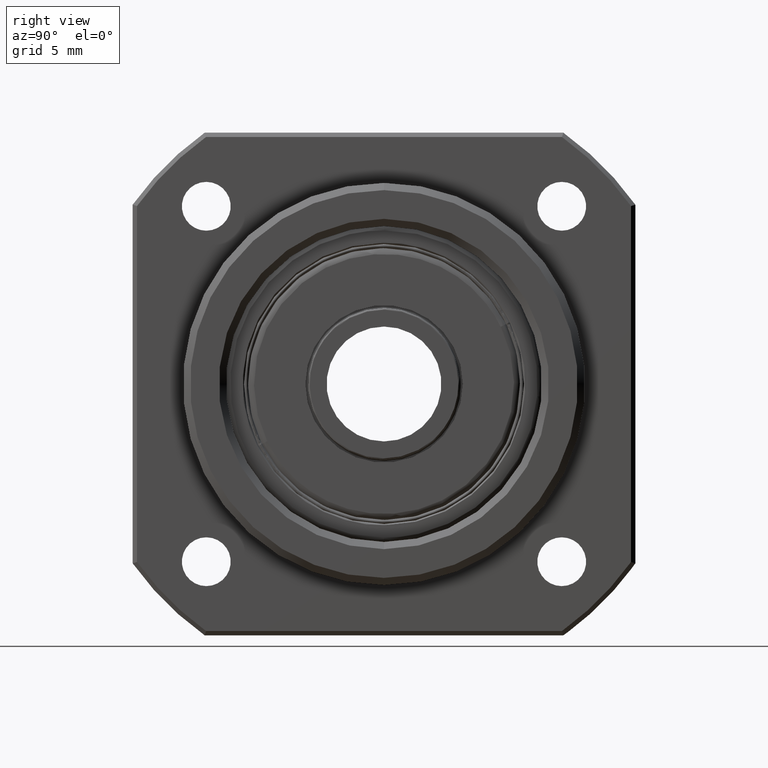
[diagram: clean part render]
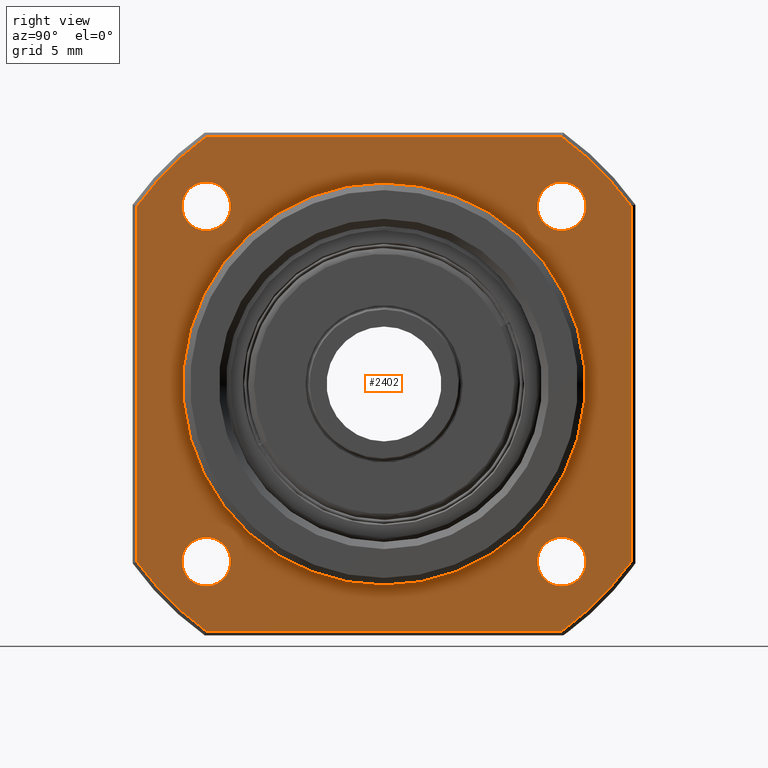
[diagram: same view with one face highlighted and labeled with its STEP entity id]
A machine part, right view. The second image highlights one B-rep face of the part: STEP entity #2402.
In plain terms, the highlighted planar face has unit normal (-1, 0, 0).
Its self-contained STEP definition (entity closure, byte-faithful):
#59 = CARTESIAN_POINT ( 'NONE',  ( 7.000000000000002700, -17.20000000000000600, 12.39354670786372700 ) ) ;
#86 = EDGE_CURVE ( 'NONE', #4583, #1376, #1943, .T. ) ;
#116 = AXIS2_PLACEMENT_3D ( 'NONE', #4829, #4819, #4806 ) ;
#152 = VERTEX_POINT ( 'NONE', #3641 ) ;
#268 = AXIS2_PLACEMENT_3D ( 'NONE', #5181, #5168, #5147 ) ;
#270 = EDGE_CURVE ( 'NONE', #1770, #4583, #6455, .T. ) ;
#321 = CARTESIAN_POINT ( 'NONE',  ( 7.000000000000000900, 12.37436867076460700, 14.07436867076455800 ) ) ;
#362 = AXIS2_PLACEMENT_3D ( 'NONE', #5517, #5510, #5498 ) ;
#476 = EDGE_CURVE ( 'NONE', #3995, #1770, #6333, .T. ) ;
#571 = EDGE_CURVE ( 'NONE', #4363, #3995, #6270, .T. ) ;
#660 = DIRECTION ( 'NONE',  ( 0.0000000000000000000, 0.0000000000000000000, 1.000000000000000000 ) ) ;
#677 = EDGE_CURVE ( 'NONE', #1403, #4363, #6229, .T. ) ;
#708 = EDGE_CURVE ( 'NONE', #3560, #4111, #6201, .T. ) ;
#716 = DIRECTION ( 'NONE',  ( 1.000000000000000000, 0.0000000000000000000, 0.0000000000000000000 ) ) ;
#721 = CARTESIAN_POINT ( 'NONE',  ( 7.000000000000000900, 12.37436867076460700, -12.37436867076455500 ) ) ;
#782 = AXIS2_PLACEMENT_3D ( 'NONE', #917, #846, #791 ) ;
#791 = DIRECTION ( 'NONE',  ( 0.0000000000000000000, 0.0000000000000000000, 1.000000000000000000 ) ) ;
#846 = DIRECTION ( 'NONE',  ( 1.000000000000000000, 0.0000000000000000000, 0.0000000000000000000 ) ) ;
#849 = DIRECTION ( 'NONE',  ( -0.0000000000000000000, -0.0000000000000000000, -1.000000000000000000 ) ) ;
#850 = CARTESIAN_POINT ( 'NONE',  ( 7.000000000000004400, -12.39354670786383900, 17.19999999999992500 ) ) ;
#866 = EDGE_CURVE ( 'NONE', #4111, #1403, #6181, .T. ) ;
#917 = CARTESIAN_POINT ( 'NONE',  ( 7.000000000000006200, 0.0000000000000000000, 0.0000000000000000000 ) ) ;
#931 = VERTEX_POINT ( 'NONE', #321 ) ;
#1185 = CARTESIAN_POINT ( 'NONE',  ( 7.000000000000006200, 0.0000000000000000000, 14.00000000000000200 ) ) ;
#1204 = CIRCLE ( 'NONE', #5237, 21.20000000000000300 ) ;
#1376 = VERTEX_POINT ( 'NONE', #1915 ) ;
#1385 = CIRCLE ( 'NONE', #6136, 1.700000000000000200 ) ;
#1387 = CARTESIAN_POINT ( 'NONE',  ( 7.000000000000000900, 12.39354670786381800, -17.19999999999994600 ) ) ;
#1403 = VERTEX_POINT ( 'NONE', #1387 ) ;
#1431 = AXIS2_PLACEMENT_3D ( 'NONE', #721, #716, #660 ) ;
#1460 = CIRCLE ( 'NONE', #6480, 1.700000000000000200 ) ;
#1547 = CIRCLE ( 'NONE', #116, 1.700000000000000200 ) ;
#1636 = CIRCLE ( 'NONE', #268, 1.700000000000000200 ) ;
#1676 = CIRCLE ( 'NONE', #362, 14.00000000000000200 ) ;
#1745 = AXIS2_PLACEMENT_3D ( 'NONE', #2083, #2063, #1985 ) ;
#1770 = VERTEX_POINT ( 'NONE', #59 ) ;
#1891 = VECTOR ( 'NONE', #3955, 1000.000000000000000 ) ;
#1902 = CIRCLE ( 'NONE', #782, 14.00000000000000200 ) ;
#1915 = CARTESIAN_POINT ( 'NONE',  ( 7.000000000000000900, 12.39354670786384300, 17.19999999999993200 ) ) ;
#1916 = VERTEX_POINT ( 'NONE', #6397 ) ;
#1928 = AXIS2_PLACEMENT_3D ( 'NONE', #3093, #3079, #2957 ) ;
#1943 = LINE ( 'NONE', #4026, #1891 ) ;
#1985 = DIRECTION ( 'NONE',  ( 0.0000000000000000000, 0.0000000000000000000, 1.000000000000000000 ) ) ;
#2063 = DIRECTION ( 'NONE',  ( 1.000000000000000000, 0.0000000000000000000, 0.0000000000000000000 ) ) ;
#2083 = CARTESIAN_POINT ( 'NONE',  ( 7.000000000000000900, 12.37436867076460700, 12.37436867076455900 ) ) ;
#2150 = EDGE_LOOP ( 'NONE', ( #4803, #4811, #4830, #4854, #4859, #4864, #4958, #4978 ) ) ;
#2204 = CARTESIAN_POINT ( 'NONE',  ( 7.000000000000002700, -12.39354670786381800, -17.19999999999994600 ) ) ;
#2247 = CIRCLE ( 'NONE', #1431, 1.700000000000000200 ) ;
#2319 = CIRCLE ( 'NONE', #1745, 1.700000000000000200 ) ;
#2348 = DIRECTION ( 'NONE',  ( 0.0000000000000000000, 0.0000000000000000000, 1.000000000000000000 ) ) ;
#2364 = DIRECTION ( 'NONE',  ( -1.000000000000000000, 0.0000000000000000000, 0.0000000000000000000 ) ) ;
#2374 = CARTESIAN_POINT ( 'NONE',  ( 7.000000000000002700, 0.0000000000000000000, 0.0000000000000000000 ) ) ;
#2402 = ADVANCED_FACE ( 'NONE', ( #4879, #4885, #4862, #4866, #4860, #4852 ), #4831, .F. ) ;
#2411 = CARTESIAN_POINT ( 'NONE',  ( 7.000000000000006200, 1.714505518806294800E-015, -14.00000000000000200 ) ) ;
#2510 = CIRCLE ( 'NONE', #1928, 1.700000000000000200 ) ;
#2619 = CIRCLE ( 'NONE', #2691, 1.700000000000000200 ) ;
#2691 = AXIS2_PLACEMENT_3D ( 'NONE', #5494, #5481, #5473 ) ;
#2779 = VERTEX_POINT ( 'NONE', #1185 ) ;
#2913 = CARTESIAN_POINT ( 'NONE',  ( 7.000000000000000900, -17.20000000000001000, 0.0000000000000000000 ) ) ;
#2957 = DIRECTION ( 'NONE',  ( 0.0000000000000000000, 0.0000000000000000000, 1.000000000000000000 ) ) ;
#2976 = AXIS2_PLACEMENT_3D ( 'NONE', #4103, #4136, #4354 ) ;
#3060 = VERTEX_POINT ( 'NONE', #3526 ) ;
#3079 = DIRECTION ( 'NONE',  ( 1.000000000000000000, 0.0000000000000000000, 0.0000000000000000000 ) ) ;
#3093 = CARTESIAN_POINT ( 'NONE',  ( 7.000000000000000900, -12.37436867076460000, 12.37436867076455900 ) ) ;
#3161 = AXIS2_PLACEMENT_3D ( 'NONE', #5489, #5433, #5465 ) ;
#3265 = CARTESIAN_POINT ( 'NONE',  ( 7.000000000000001800, 17.19999999999999200, -12.39354670786375000 ) ) ;
#3300 = CARTESIAN_POINT ( 'NONE',  ( 7.000000000000000900, 12.37436867076460700, -14.07436867076455500 ) ) ;
#3310 = VERTEX_POINT ( 'NONE', #5378 ) ;
#3450 = AXIS2_PLACEMENT_3D ( 'NONE', #3890, #4560, #3842 ) ;
#3526 = CARTESIAN_POINT ( 'NONE',  ( 7.000000000000000900, -12.37436867076460000, -10.67436867076455400 ) ) ;
#3560 = VERTEX_POINT ( 'NONE', #5503 ) ;
#3641 = CARTESIAN_POINT ( 'NONE',  ( 7.000000000000000900, 12.37436867076460700, 10.67436867076455800 ) ) ;
#3653 = EDGE_LOOP ( 'NONE', ( #4756, #4785 ) ) ;
#3768 = CARTESIAN_POINT ( 'NONE',  ( 7.000000000000004400, -17.20000000000000600, -12.39354670786372700 ) ) ;
#3842 = DIRECTION ( 'NONE',  ( 0.0000000000000000000, 0.0000000000000000000, 1.000000000000000000 ) ) ;
#3890 = CARTESIAN_POINT ( 'NONE',  ( 7.000000000000005300, 0.0000000000000000000, 0.0000000000000000000 ) ) ;
#3955 = DIRECTION ( 'NONE',  ( 0.0000000000000000000, 1.000000000000000000, -0.0000000000000000000 ) ) ;
#3976 = EDGE_LOOP ( 'NONE', ( #4727, #4738 ) ) ;
#3977 = DIRECTION ( 'NONE',  ( 0.0000000000000000000, 0.0000000000000000000, 1.000000000000000000 ) ) ;
#3986 = DIRECTION ( 'NONE',  ( 1.000000000000000000, 0.0000000000000000000, 0.0000000000000000000 ) ) ;
#3995 = VERTEX_POINT ( 'NONE', #3768 ) ;
#4026 = CARTESIAN_POINT ( 'NONE',  ( 7.000000000000000900, 21.50000000000000000, 17.19999999999992800 ) ) ;
#4036 = VERTEX_POINT ( 'NONE', #3300 ) ;
#4103 = CARTESIAN_POINT ( 'NONE',  ( 7.000000000000002700, 0.0000000000000000000, 0.0000000000000000000 ) ) ;
#4111 = VERTEX_POINT ( 'NONE', #3265 ) ;
#4116 = EDGE_LOOP ( 'NONE', ( #4715, #4717 ) ) ;
#4136 = DIRECTION ( 'NONE',  ( -1.000000000000000000, 0.0000000000000000000, 0.0000000000000000000 ) ) ;
#4246 = EDGE_LOOP ( 'NONE', ( #4687, #4709 ) ) ;
#4313 = CARTESIAN_POINT ( 'NONE',  ( 7.000000000000000900, -12.37436867076460000, -12.37436867076455500 ) ) ;
#4354 = DIRECTION ( 'NONE',  ( 0.0000000000000000000, 0.0000000000000000000, 1.000000000000000000 ) ) ;
#4363 = VERTEX_POINT ( 'NONE', #2204 ) ;
#4422 = DIRECTION ( 'NONE',  ( 0.0000000000000000000, 0.0000000000000000000, 1.000000000000000000 ) ) ;
#4435 = DIRECTION ( 'NONE',  ( 1.000000000000000000, 0.0000000000000000000, 0.0000000000000000000 ) ) ;
#4456 = CARTESIAN_POINT ( 'NONE',  ( 7.000000000000000900, -12.37436867076460000, 12.37436867076455900 ) ) ;
#4560 = DIRECTION ( 'NONE',  ( -1.000000000000000000, 0.0000000000000000000, 0.0000000000000000000 ) ) ;
#4575 = AXIS2_PLACEMENT_3D ( 'NONE', #4807, #5214, #4821 ) ;
#4583 = VERTEX_POINT ( 'NONE', #850 ) ;
#4600 = DIRECTION ( 'NONE',  ( 0.0000000000000000000, 0.0000000000000000000, 1.000000000000000000 ) ) ;
#4665 = ORIENTED_EDGE ( 'NONE', *, *, #5929, .F. ) ;
#4677 = ORIENTED_EDGE ( 'NONE', *, *, #5620, .F. ) ;
#4687 = ORIENTED_EDGE ( 'NONE', *, *, #4932, .F. ) ;
#4709 = ORIENTED_EDGE ( 'NONE', *, *, #6239, .F. ) ;
#4710 = EDGE_LOOP ( 'NONE', ( #4665, #4677 ) ) ;
#4715 = ORIENTED_EDGE ( 'NONE', *, *, #5082, .F. ) ;
#4717 = ORIENTED_EDGE ( 'NONE', *, *, #6141, .F. ) ;
#4727 = ORIENTED_EDGE ( 'NONE', *, *, #5165, .F. ) ;
#4738 = ORIENTED_EDGE ( 'NONE', *, *, #6074, .F. ) ;
#4756 = ORIENTED_EDGE ( 'NONE', *, *, #5288, .F. ) ;
#4785 = ORIENTED_EDGE ( 'NONE', *, *, #5980, .F. ) ;
#4803 = ORIENTED_EDGE ( 'NONE', *, *, #270, .F. ) ;
#4806 = DIRECTION ( 'NONE',  ( 0.0000000000000000000, 0.0000000000000000000, 1.000000000000000000 ) ) ;
#4807 = CARTESIAN_POINT ( 'NONE',  ( 7.000000000000000900, 21.50000000000000000, 0.0000000000000000000 ) ) ;
#4811 = ORIENTED_EDGE ( 'NONE', *, *, #476, .F. ) ;
#4819 = DIRECTION ( 'NONE',  ( 1.000000000000000000, 0.0000000000000000000, 0.0000000000000000000 ) ) ;
#4821 = DIRECTION ( 'NONE',  ( 0.0000000000000000000, 0.0000000000000000000, 1.000000000000000000 ) ) ;
#4829 = CARTESIAN_POINT ( 'NONE',  ( 7.000000000000000900, 12.37436867076460700, 12.37436867076455900 ) ) ;
#4830 = ORIENTED_EDGE ( 'NONE', *, *, #571, .F. ) ;
#4831 = PLANE ( 'NONE',  #4575 ) ;
#4842 = CARTESIAN_POINT ( 'NONE',  ( 7.000000000000000900, -12.37436867076460000, -14.07436867076455500 ) ) ;
#4852 = FACE_OUTER_BOUND ( 'NONE', #2150, .T. ) ;
#4854 = ORIENTED_EDGE ( 'NONE', *, *, #677, .F. ) ;
#4859 = ORIENTED_EDGE ( 'NONE', *, *, #866, .F. ) ;
#4860 = FACE_BOUND ( 'NONE', #3653, .T. ) ;
#4862 = FACE_BOUND ( 'NONE', #4116, .T. ) ;
#4864 = ORIENTED_EDGE ( 'NONE', *, *, #708, .F. ) ;
#4866 = FACE_BOUND ( 'NONE', #3976, .T. ) ;
#4879 = FACE_BOUND ( 'NONE', #4710, .T. ) ;
#4885 = FACE_BOUND ( 'NONE', #4246, .T. ) ;
#4906 = CARTESIAN_POINT ( 'NONE',  ( 7.000000000000000900, 17.19999999999999200, 0.0000000000000000000 ) ) ;
#4932 = EDGE_CURVE ( 'NONE', #3060, #6143, #2619, .T. ) ;
#4958 = ORIENTED_EDGE ( 'NONE', *, *, #6446, .F. ) ;
#4978 = ORIENTED_EDGE ( 'NONE', *, *, #86, .F. ) ;
#5058 = CARTESIAN_POINT ( 'NONE',  ( 7.000000000000000900, 21.50000000000000000, -17.19999999999994600 ) ) ;
#5082 = EDGE_CURVE ( 'NONE', #5412, #3310, #2510, .T. ) ;
#5102 = DIRECTION ( 'NONE',  ( -0.0000000000000000000, -1.000000000000000000, 0.0000000000000000000 ) ) ;
#5147 = DIRECTION ( 'NONE',  ( 0.0000000000000000000, 0.0000000000000000000, 1.000000000000000000 ) ) ;
#5165 = EDGE_CURVE ( 'NONE', #931, #152, #2319, .T. ) ;
#5168 = DIRECTION ( 'NONE',  ( 1.000000000000000000, 0.0000000000000000000, 0.0000000000000000000 ) ) ;
#5181 = CARTESIAN_POINT ( 'NONE',  ( 7.000000000000000900, 12.37436867076460700, -12.37436867076455500 ) ) ;
#5214 = DIRECTION ( 'NONE',  ( -1.000000000000000000, 0.0000000000000000000, 0.0000000000000000000 ) ) ;
#5237 = AXIS2_PLACEMENT_3D ( 'NONE', #2374, #2364, #2348 ) ;
#5288 = EDGE_CURVE ( 'NONE', #1916, #4036, #2247, .T. ) ;
#5378 = CARTESIAN_POINT ( 'NONE',  ( 7.000000000000000900, -12.37436867076460000, 10.67436867076455800 ) ) ;
#5412 = VERTEX_POINT ( 'NONE', #5837 ) ;
#5433 = DIRECTION ( 'NONE',  ( -1.000000000000000000, 0.0000000000000000000, 0.0000000000000000000 ) ) ;
#5465 = DIRECTION ( 'NONE',  ( 0.0000000000000000000, 0.0000000000000000000, 1.000000000000000000 ) ) ;
#5473 = DIRECTION ( 'NONE',  ( 0.0000000000000000000, 0.0000000000000000000, 1.000000000000000000 ) ) ;
#5481 = DIRECTION ( 'NONE',  ( 1.000000000000000000, 0.0000000000000000000, 0.0000000000000000000 ) ) ;
#5489 = CARTESIAN_POINT ( 'NONE',  ( 7.000000000000005300, 0.0000000000000000000, 0.0000000000000000000 ) ) ;
#5494 = CARTESIAN_POINT ( 'NONE',  ( 7.000000000000000900, -12.37436867076460000, -12.37436867076455500 ) ) ;
#5498 = DIRECTION ( 'NONE',  ( 0.0000000000000000000, 0.0000000000000000000, 1.000000000000000000 ) ) ;
#5503 = CARTESIAN_POINT ( 'NONE',  ( 7.000000000000002700, 17.19999999999999200, 12.39354670786374900 ) ) ;
#5510 = DIRECTION ( 'NONE',  ( 1.000000000000000000, 0.0000000000000000000, 0.0000000000000000000 ) ) ;
#5517 = CARTESIAN_POINT ( 'NONE',  ( 7.000000000000006200, 0.0000000000000000000, 0.0000000000000000000 ) ) ;
#5620 = EDGE_CURVE ( 'NONE', #6459, #2779, #1902, .T. ) ;
#5837 = CARTESIAN_POINT ( 'NONE',  ( 7.000000000000000900, -12.37436867076460000, 14.07436867076455800 ) ) ;
#5929 = EDGE_CURVE ( 'NONE', #2779, #6459, #1676, .T. ) ;
#5980 = EDGE_CURVE ( 'NONE', #4036, #1916, #1636, .T. ) ;
#6074 = EDGE_CURVE ( 'NONE', #152, #931, #1547, .T. ) ;
#6136 = AXIS2_PLACEMENT_3D ( 'NONE', #4313, #3986, #3977 ) ;
#6141 = EDGE_CURVE ( 'NONE', #3310, #5412, #1460, .T. ) ;
#6143 = VERTEX_POINT ( 'NONE', #4842 ) ;
#6181 = CIRCLE ( 'NONE', #2976, 21.20000000000000300 ) ;
#6201 = LINE ( 'NONE', #4906, #6208 ) ;
#6208 = VECTOR ( 'NONE', #849, 1000.000000000000000 ) ;
#6229 = LINE ( 'NONE', #5058, #6236 ) ;
#6236 = VECTOR ( 'NONE', #5102, 1000.000000000000000 ) ;
#6239 = EDGE_CURVE ( 'NONE', #6143, #3060, #1385, .T. ) ;
#6270 = CIRCLE ( 'NONE', #3161, 21.19999999999999900 ) ;
#6316 = VECTOR ( 'NONE', #4600, 1000.000000000000000 ) ;
#6333 = LINE ( 'NONE', #2913, #6316 ) ;
#6397 = CARTESIAN_POINT ( 'NONE',  ( 7.000000000000000900, 12.37436867076460700, -10.67436867076455400 ) ) ;
#6446 = EDGE_CURVE ( 'NONE', #1376, #3560, #1204, .T. ) ;
#6455 = CIRCLE ( 'NONE', #3450, 21.19999999999999900 ) ;
#6459 = VERTEX_POINT ( 'NONE', #2411 ) ;
#6480 = AXIS2_PLACEMENT_3D ( 'NONE', #4456, #4435, #4422 ) ;